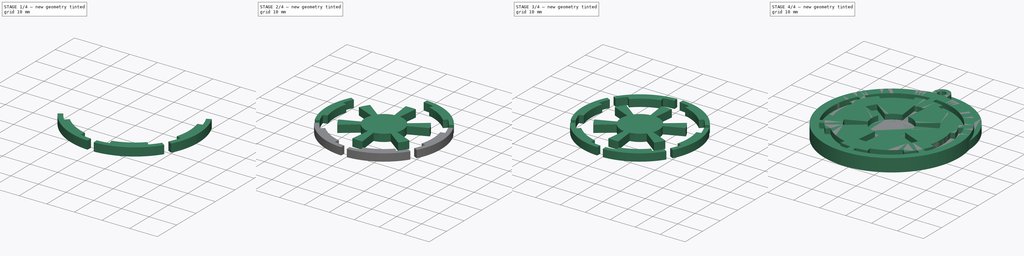
[diagram: build sequence overview — one tinted view per stage of 4, left to right]
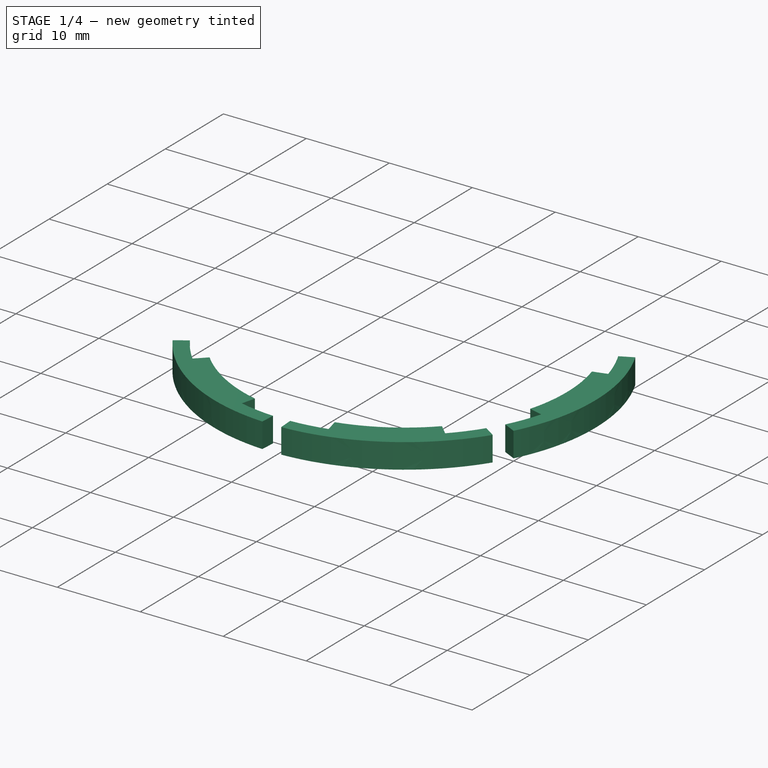
[diagram: stage 1 of 4 — iso view after this stage's code; geometry added in this stage tinted green]
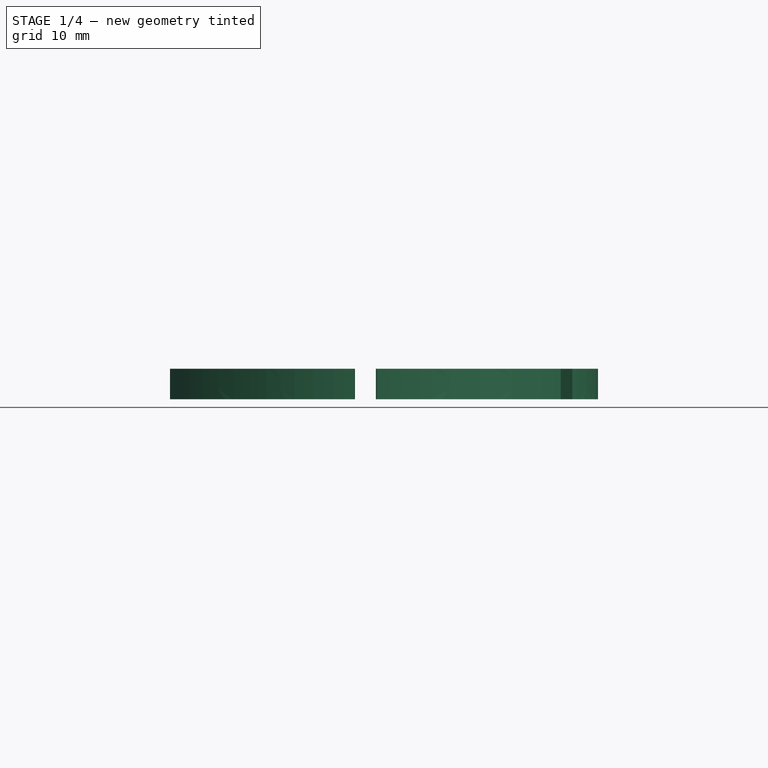
[diagram: stage 1 of 4 — front view after this stage's code; geometry added in this stage tinted green]
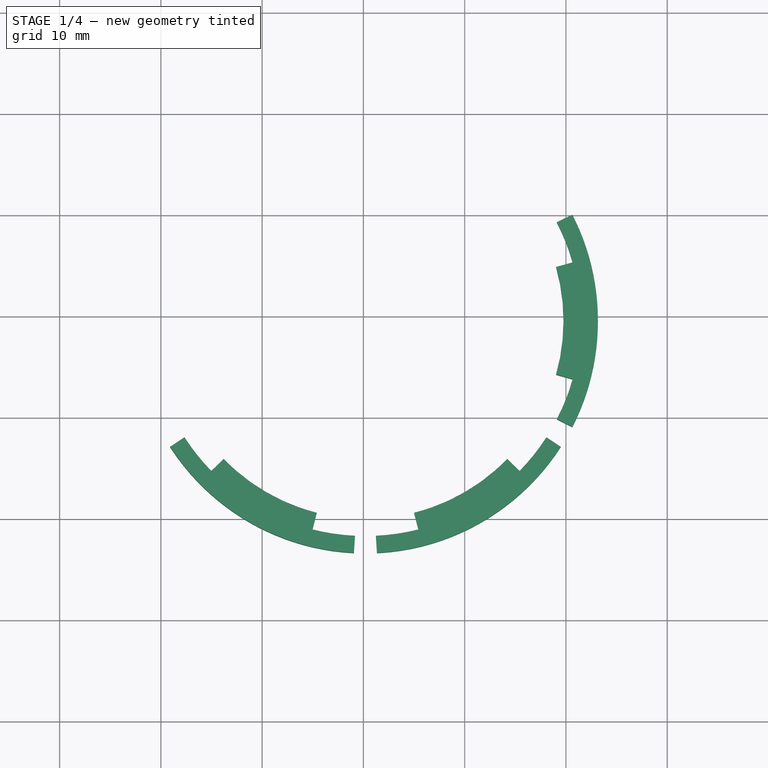
[diagram: stage 1 of 4 — top view after this stage's code; geometry added in this stage tinted green]
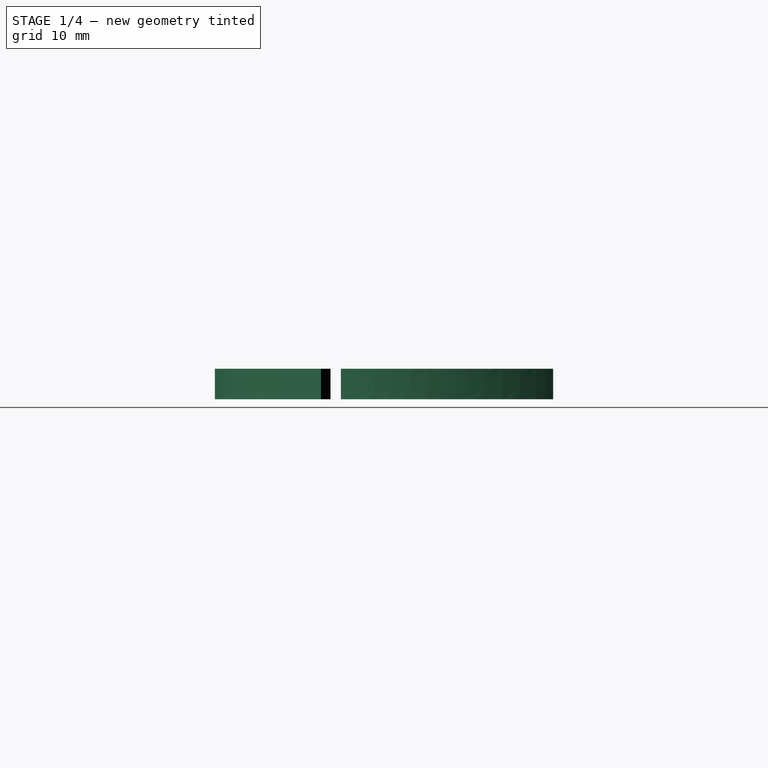
[diagram: stage 1 of 4 — right view after this stage's code; geometry added in this stage tinted green]
FCSTD DOCUMENT
Label: imperial-keychain-v1
objects: Part::Feature×10, Part::Extrusion×8, Sketcher::SketchObject×1, PartDesign::Pad×1, Part::MultiFuse×1, Part::Cut×1, App::DocumentObjectGroup×1
note: 23 computed .brp shape members not serialized (recipe doc carries the construction recipe); baked Part::Feature solids carry a one-line shape summary decoded from their .brp

FEATURE [Part::Extrusion] Extrude005
  Base = -> p1005
  Dir = (0,0,3)
  Solid = true
FEATURE [Part::Extrusion] Extrude006
  Base = -> p1006
  Dir = (0,0,3)
  Solid = true
FEATURE [Part::Extrusion] Extrude007
  Base = -> p1007
  Dir = (0,0,3)
  Solid = true
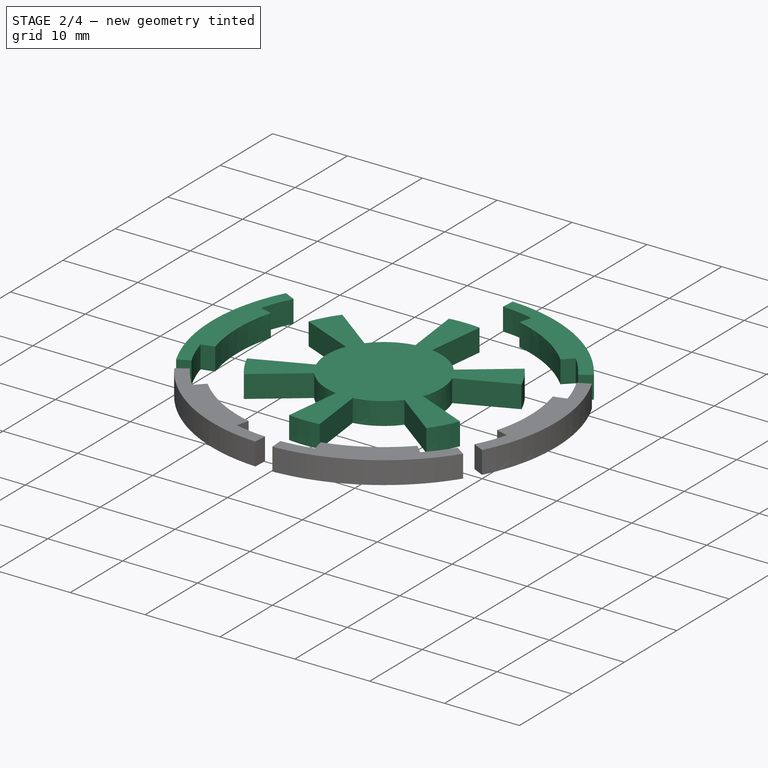
[diagram: stage 2 of 4 — iso view after this stage's code; geometry added in this stage tinted green]
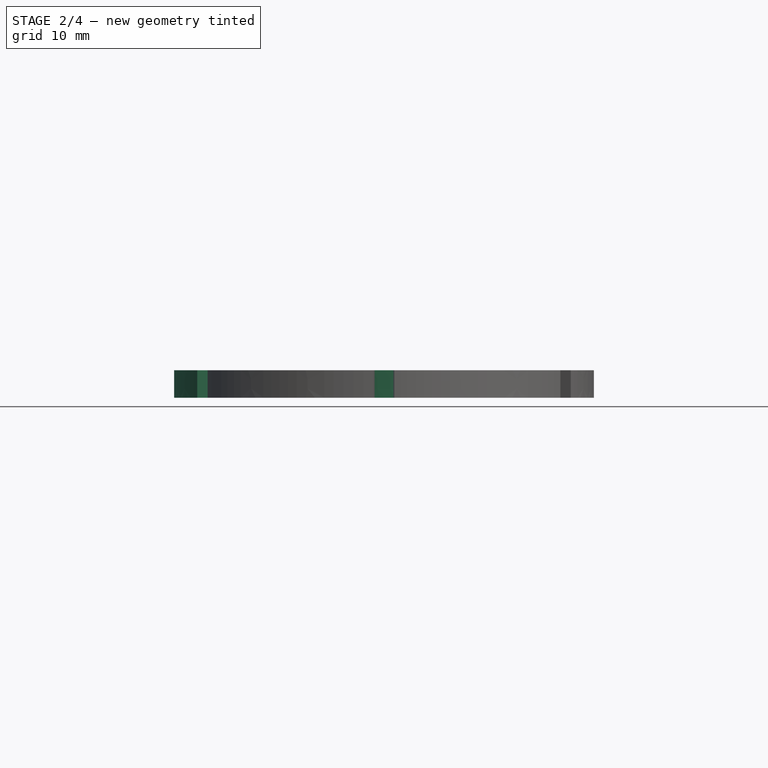
[diagram: stage 2 of 4 — front view after this stage's code; geometry added in this stage tinted green]
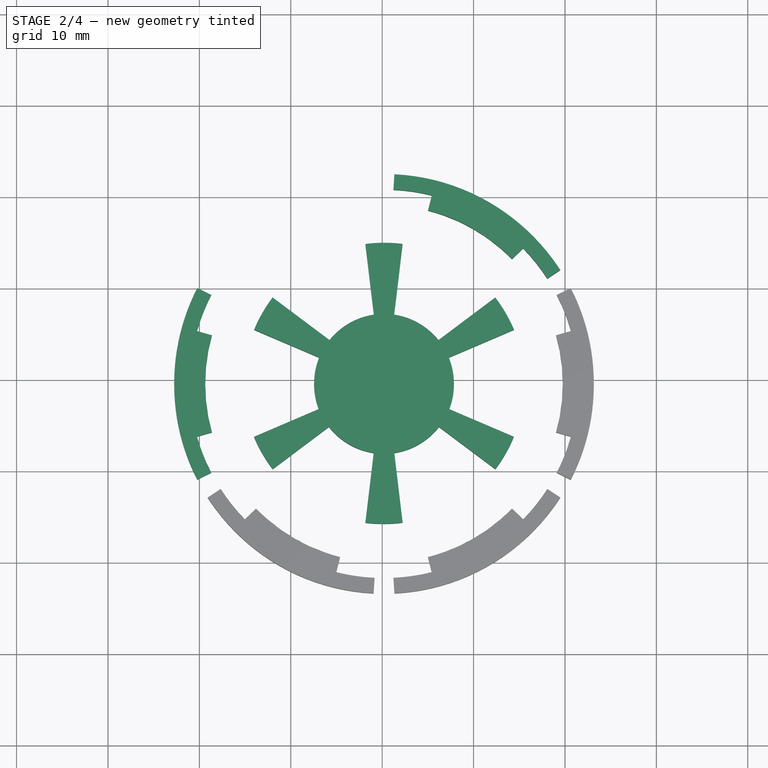
[diagram: stage 2 of 4 — top view after this stage's code; geometry added in this stage tinted green]
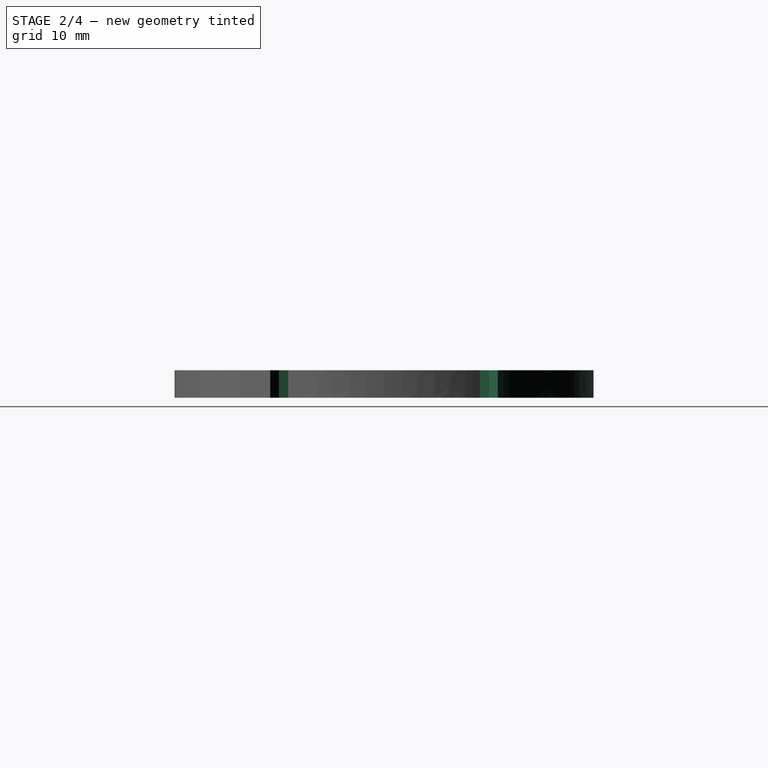
[diagram: stage 2 of 4 — right view after this stage's code; geometry added in this stage tinted green]
FEATURE [Part::Extrusion] Extrude002
  Base = -> p1002
  Dir = (0,0,3)
  Solid = true
FEATURE [Part::Extrusion] Extrude003
  Base = -> p1003
  Dir = (0,0,3)
  Solid = true
FEATURE [Part::Extrusion] Extrude004
  Base = -> p1004
  Dir = (0,0,3)
  Solid = true
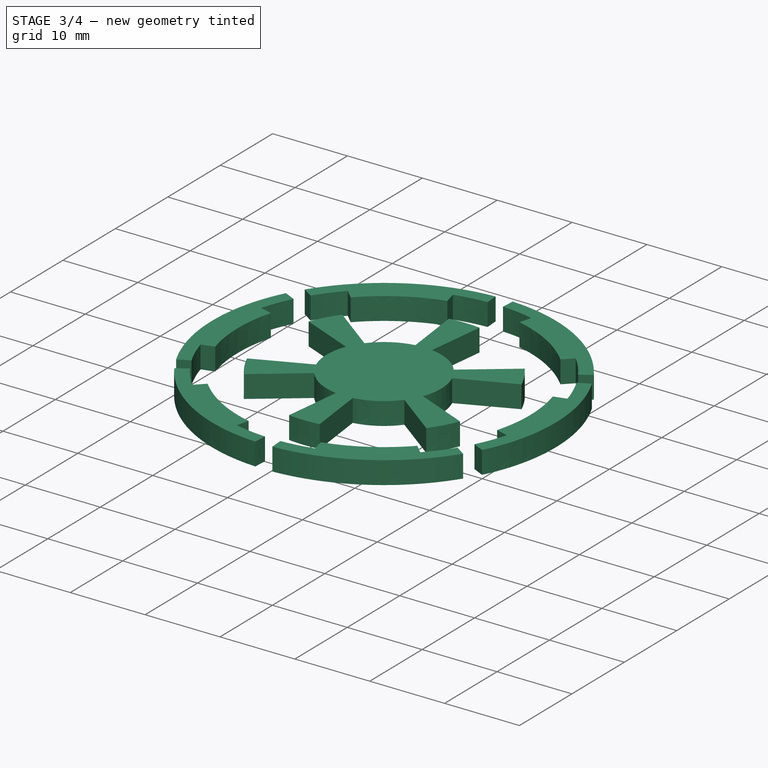
[diagram: stage 3 of 4 — iso view after this stage's code; geometry added in this stage tinted green]
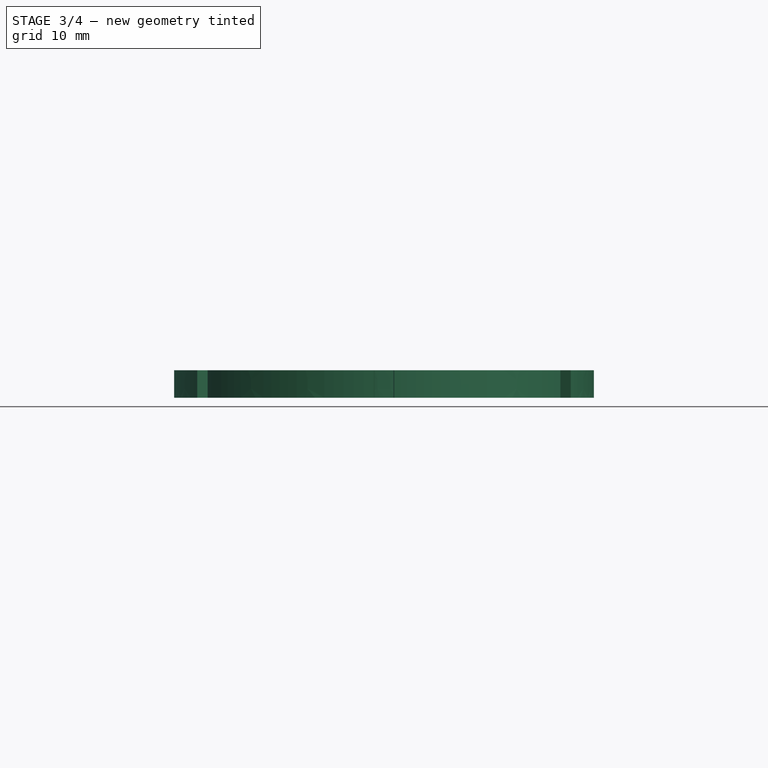
[diagram: stage 3 of 4 — front view after this stage's code; geometry added in this stage tinted green]
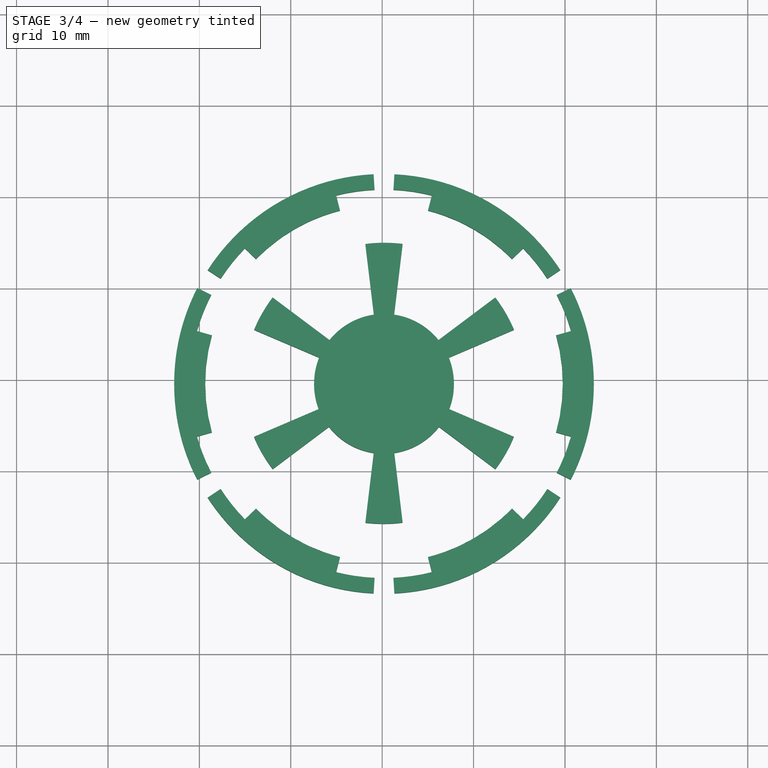
[diagram: stage 3 of 4 — top view after this stage's code; geometry added in this stage tinted green]
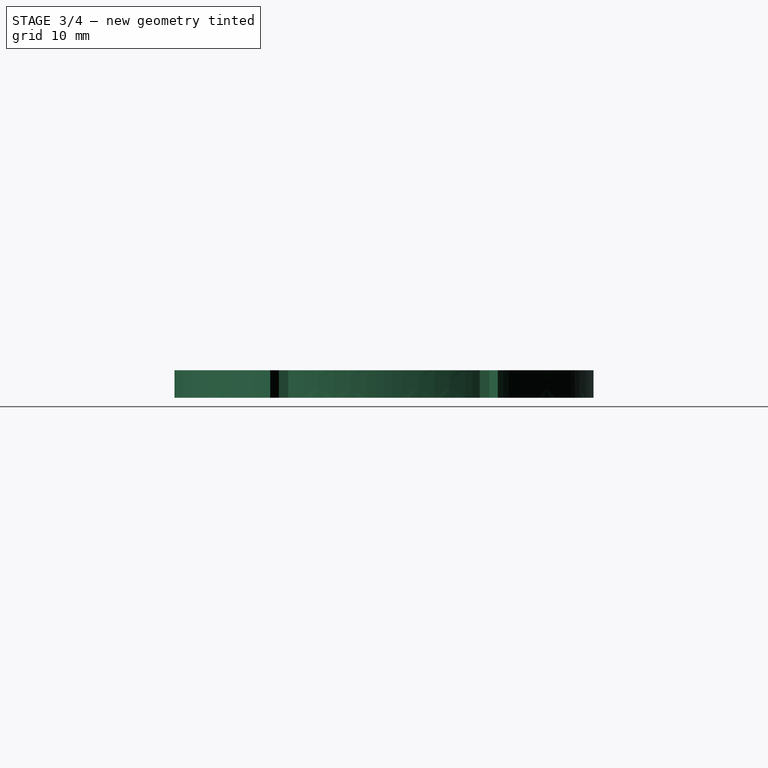
[diagram: stage 3 of 4 — right view after this stage's code; geometry added in this stage tinted green]
FEATURE [Part::Extrusion] Extrude001
  Base = -> p1001
  Dir = (0,0,3)
  Solid = true
FEATURE [Part::MultiFuse] Fusion  label="imperial-emblem-interior"
  Placement = pos=(0,0,3) rot=(0,0,1;0rad)
  Shapes = -> [Extrude001,Extrude002,Extrude003,Extrude004,Extrude005,Extrude006,Extrude007]
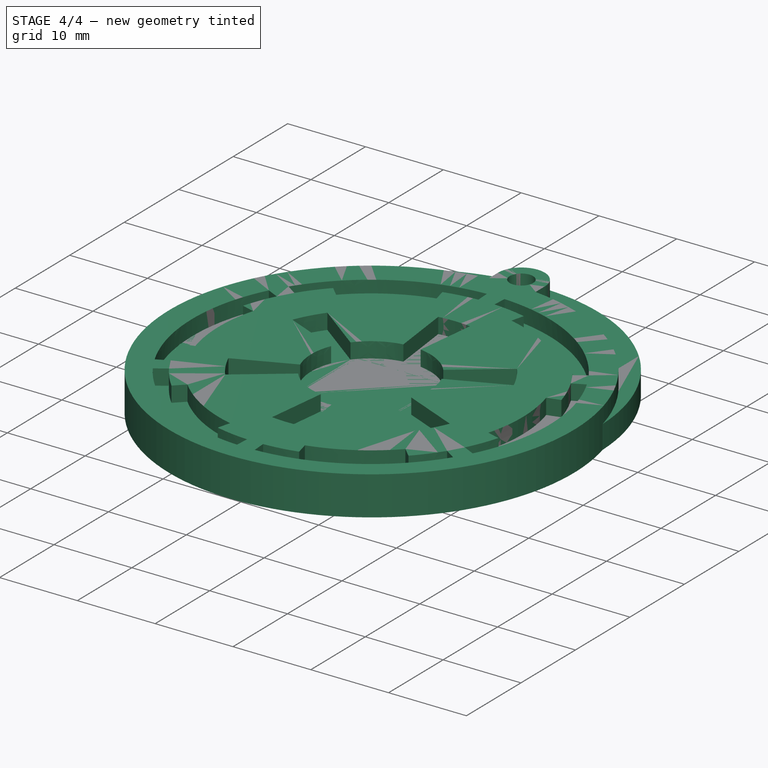
[diagram: stage 4 of 4 — iso view after this stage's code; geometry added in this stage tinted green]
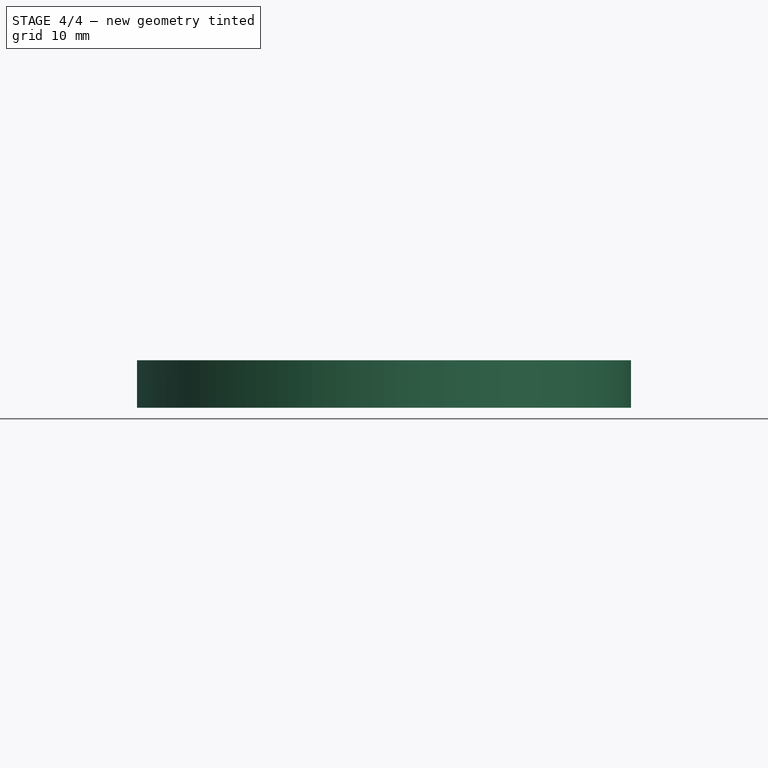
[diagram: stage 4 of 4 — front view after this stage's code; geometry added in this stage tinted green]
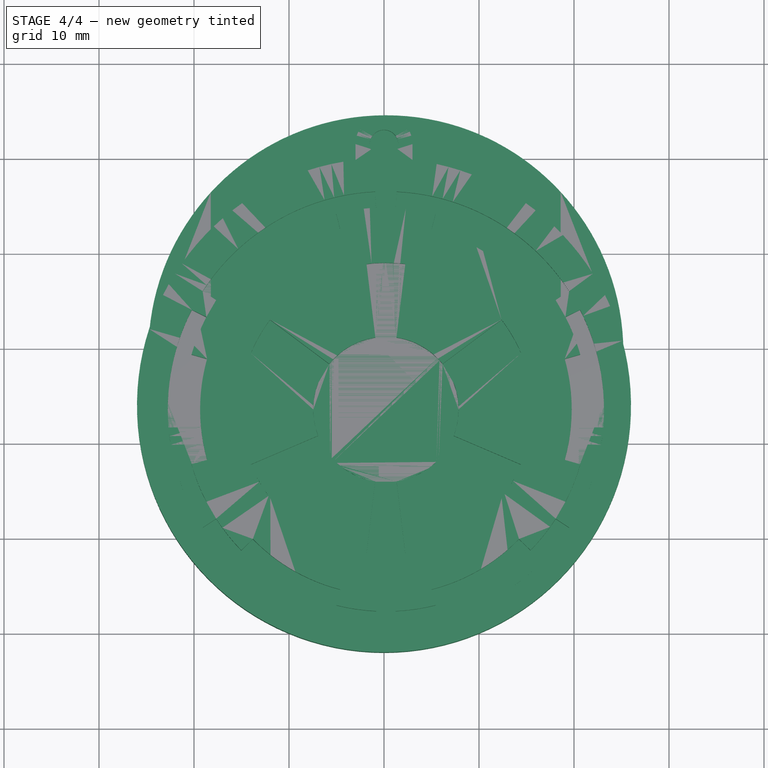
[diagram: stage 4 of 4 — top view after this stage's code; geometry added in this stage tinted green]
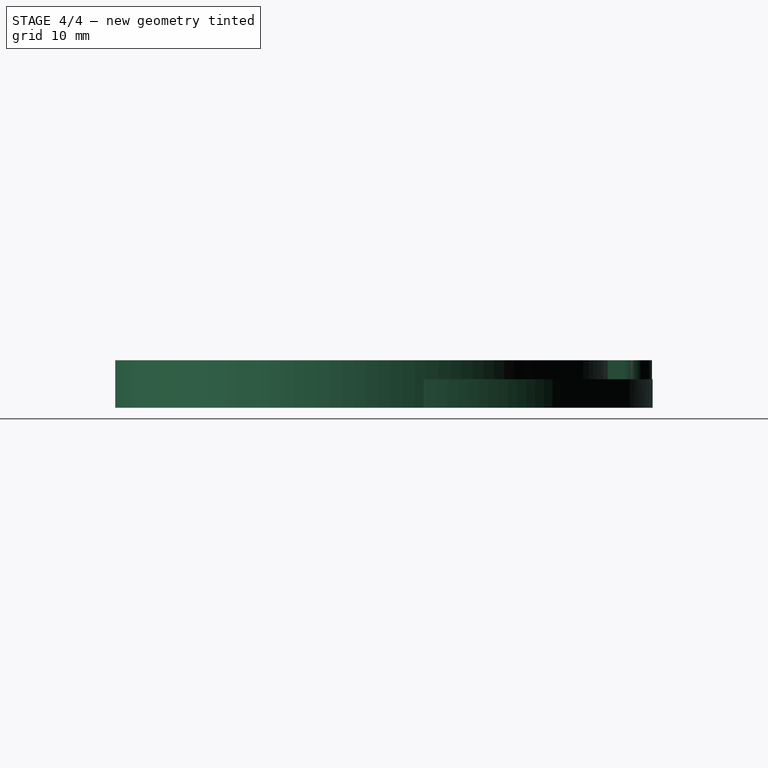
[diagram: stage 4 of 4 — right view after this stage's code; geometry added in this stage tinted green]
FEATURE [Sketcher::SketchObject] Sketch
  sketch-geometry (6):
    g0: ArcOfCircle CenterX=0 CenterY=0 CenterZ=0 NormalX=0 NormalY=0 NormalZ=1 Radius=26 StartAngle=1.68644 EndAngle=7.73834
    g1: LineSegment StartX=-3 StartY=27.5003 StartZ=0 EndX=-3 EndY=25.8263 EndZ=0
    g2: LineSegment StartX=3 StartY=27.5003 StartZ=0 EndX=3 EndY=25.8263 EndZ=0
    g3: ArcOfCircle CenterX=0 CenterY=27.5 CenterZ=0 NormalX=0 NormalY=0 NormalZ=1 Radius=3 StartAngle=9.54712e-05 EndAngle=3.1415
    g4: Circle CenterX=0 CenterY=27.5 CenterZ=0 NormalX=0 NormalY=0 NormalZ=1 Radius=1.5
    g5: LineSegment [constr] StartX=-3 StartY=25.8263 StartZ=0 EndX=3 EndY=25.8263 EndZ=0
  constraints (16):
    c: Coincident(g0,g-1)
    c: Radius(g0) = 26
    c: Vertical(g1)
    c: Vertical(g2)
    c: Coincident(g3,g2)
    c: Coincident(g3,g1)
    c: DistanceY(g-1,g3) = 27.5
    c: Equal(g1,g2)
    c: Radius(g3) = 3
    c: Coincident(g4,g3)
    c: Radius(g4) = 1.5
    c: Coincident(g0,g1)
    c: Coincident(g0,g2)
    c: Horizontal(g5)
    c: Coincident(g5,g0)
    c: Coincident(g5,g0)
FEATURE [PartDesign::Pad] Pad  label="keychain-main-body"
  Length = 5
  Length2 = 100
  Sketch = -> Sketch
  Type = 0
FEATURE [Part::Feature] p1
  shape: bbox 50.24 x 50.24 x 2e-07 mm, 1 faces, 0 solids (baked)
FEATURE [Part::Feature] p1001
  shape: bbox 18.29 x 11.46 x 2e-07 mm, 1 faces, 0 solids (baked)
FEATURE [Part::Feature] p1002
  shape: bbox 18.29 x 11.46 x 2e-07 mm, 1 faces, 0 solids (baked)
FEATURE [Part::Feature] p1003
  shape: bbox 28.46 x 30.75 x 2e-07 mm, 1 faces, 0 solids (baked)
FEATURE [Part::Feature] p1004
  shape: bbox 4.148 x 20.97 x 2e-07 mm, 1 faces, 0 solids (baked)
FEATURE [Part::Feature] p1005
  shape: bbox 4.148 x 20.97 x 2e-07 mm, 1 faces, 0 solids (baked)
FEATURE [Part::Feature] p1006
  shape: bbox 18.29 x 11.46 x 2e-07 mm, 1 faces, 0 solids (baked)
FEATURE [Part::Feature] p1007
  shape: bbox 18.29 x 11.46 x 2e-07 mm, 1 faces, 0 solids (baked)
FEATURE [Part::Extrusion] Extrude  label="imperial-emblem-circle"
  Base = -> p1
  Dir = (0,0,3)
  Solid = true
FEATURE [Part::Cut] Cut  label="keychain-final"
  Base = -> Pad
  Placement = pos=(0,-6,0) rot=(0,0,1;0rad)
  Tool = -> Fusion
FEATURE [Part::Feature] Sweep  label="key-ring-model-1"
  Placement = pos=(-1.2,30.2546,1.6391) rot=(0.333333,0.881918,0.333333;1.69612rad)
  shape: bbox 3.31 x 27.02 x 26.33 mm, 4 faces (baked)
FEATURE [Part::Feature] Cut001  label="key-model-1"
  Placement = pos=(-5.46976,36.5266,0) rot=(0,0,1;0.517888rad)
  shape: bbox 49.82 x 36.6 x 2.3 mm, 44 faces (baked)
FEATURE [App::DocumentObjectGroup] Grupo  label="Key"
  Group = -> [Cut001,Sweep]
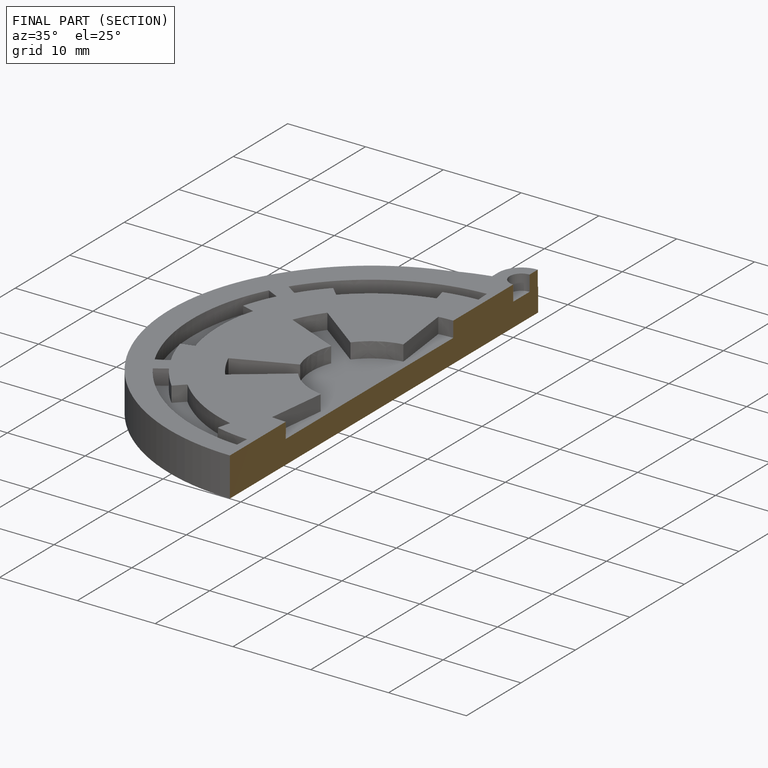
[diagram: finished part — half-section view (interior)]
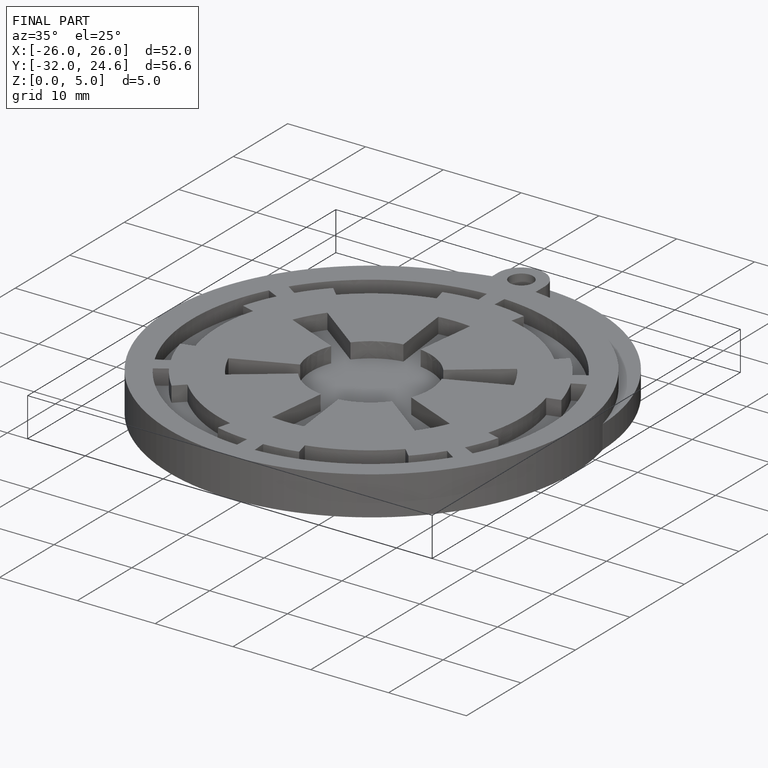
[diagram: finished part — iso view with bounding-box wireframe]
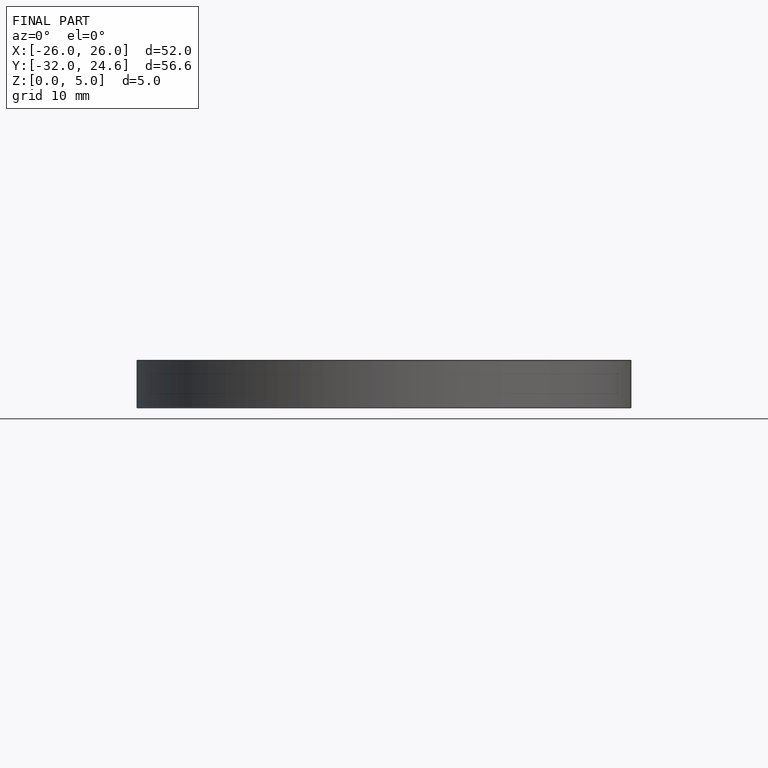
[diagram: finished part — front view with bounding-box wireframe]
